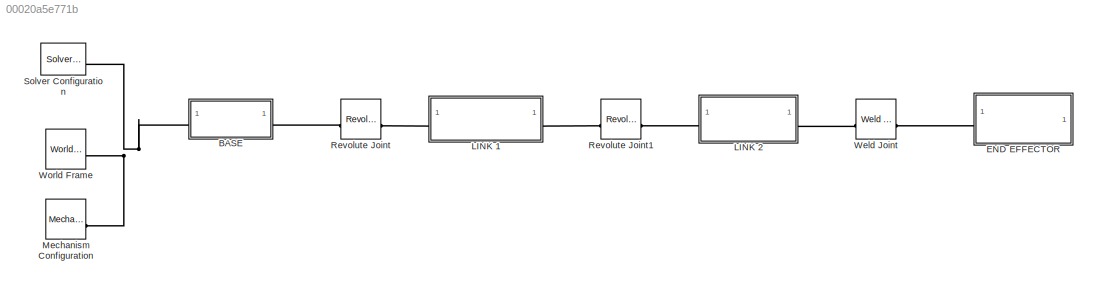
MODEL slx_00020a5e771b
KIND model
CONFIG AbsTol = auto
CONFIG EnableMultiTasking = off
CONFIG FixedStep = auto
CONFIG MaxStep = auto
CONFIG MinStep = auto
CONFIG RelTol = 1e-3
CONFIG SampleTimeConstraint = Unconstrained
CONFIG SolverName = VariableStepAuto
CONFIG StartTime = 0.0
CONFIG StopTime = 10.0
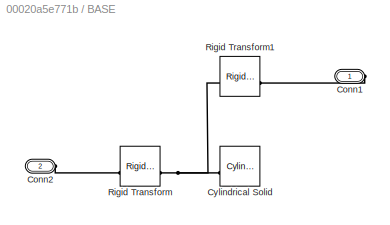
BLOCK [SubSystem] BASE
BLOCK [PMIOPort] BASE/Conn1
  Side = Right
BLOCK [PMIOPort] BASE/Conn2
  Port = 2
  Side = Left
BLOCK [Reference] BASE/Cylindrical Solid  REF=sm_lib/Body Elements/Cylindrical Solid
  SourceBlock = sm_lib/Body Elements/Cylindrical Solid
  SourceType = Cylindrical Solid
BLOCK [Reference] BASE/Rigid Transform  REF=sm_lib/Frames and
Transforms/Rigid
Transform
  SourceBlock = sm_lib/Frames and\nTransforms/Rigid\nTransform
  SourceType = Rigid\nTransform
BLOCK [Reference] BASE/Rigid Transform1  REF=sm_lib/Frames and
Transforms/Rigid
Transform
  SourceBlock = sm_lib/Frames and\nTransforms/Rigid\nTransform
  SourceType = Rigid\nTransform
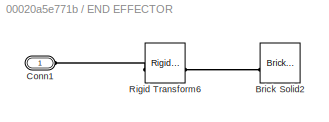
BLOCK [SubSystem] END EFFECTOR
BLOCK [Reference] END EFFECTOR/Brick Solid2  REF=sm_lib/Body Elements/Brick Solid
  SourceBlock = sm_lib/Body Elements/Brick Solid
  SourceType = Brick Solid
BLOCK [PMIOPort] END EFFECTOR/Conn1
  Side = Left
BLOCK [Reference] END EFFECTOR/Rigid Transform6  REF=sm_lib/Frames and
Transforms/Rigid
Transform
  SourceBlock = sm_lib/Frames and\nTransforms/Rigid\nTransform
  SourceType = Rigid\nTransform
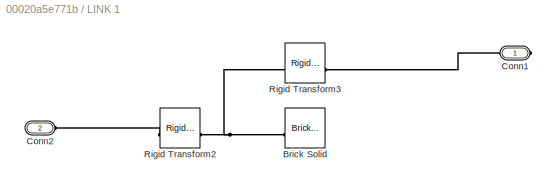
BLOCK [SubSystem] LINK 1
BLOCK [Reference] LINK 1/Brick Solid  REF=sm_lib/Body Elements/Brick Solid
  SourceBlock = sm_lib/Body Elements/Brick Solid
  SourceType = Brick Solid
BLOCK [PMIOPort] LINK 1/Conn1
  Side = Right
BLOCK [PMIOPort] LINK 1/Conn2
  Port = 2
  Side = Left
BLOCK [Reference] LINK 1/Rigid Transform2  REF=sm_lib/Frames and
Transforms/Rigid
Transform
  SourceBlock = sm_lib/Frames and\nTransforms/Rigid\nTransform
  SourceType = Rigid\nTransform
BLOCK [Reference] LINK 1/Rigid Transform3  REF=sm_lib/Frames and
Transforms/Rigid
Transform
  SourceBlock = sm_lib/Frames and\nTransforms/Rigid\nTransform
  SourceType = Rigid\nTransform
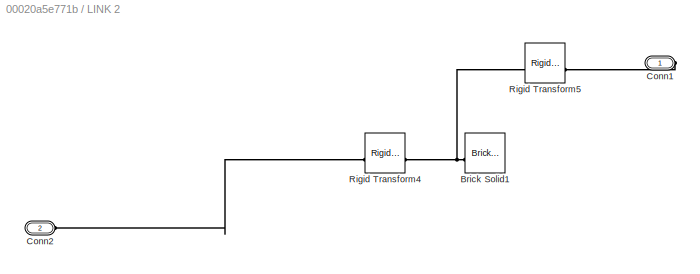
BLOCK [SubSystem] LINK 2
BLOCK [Reference] LINK 2/Brick Solid1  REF=sm_lib/Body Elements/Brick Solid
  SourceBlock = sm_lib/Body Elements/Brick Solid
  SourceType = Brick Solid
BLOCK [PMIOPort] LINK 2/Conn1
  Side = Right
BLOCK [PMIOPort] LINK 2/Conn2
  Port = 2
  Side = Left
BLOCK [Reference] LINK 2/Rigid Transform4  REF=sm_lib/Frames and
Transforms/Rigid
Transform
  SourceBlock = sm_lib/Frames and\nTransforms/Rigid\nTransform
  SourceType = Rigid\nTransform
BLOCK [Reference] LINK 2/Rigid Transform5  REF=sm_lib/Frames and
Transforms/Rigid
Transform
  SourceBlock = sm_lib/Frames and\nTransforms/Rigid\nTransform
  SourceType = Rigid\nTransform
BLOCK [Reference] Mechanism Configuration  REF=sm_lib/Utilities/Mechanism
Configuration
  SourceBlock = sm_lib/Utilities/Mechanism\nConfiguration
  SourceType = Mechanism\nConfiguration
BLOCK [Reference] Revolute Joint  REF=sm_lib/Joints/Revolute Joint
  SourceBlock = sm_lib/Joints/Revolute Joint
  SourceType = Revolute Joint
BLOCK [Reference] Revolute Joint1  REF=sm_lib/Joints/Revolute Joint
  SourceBlock = sm_lib/Joints/Revolute Joint
  SourceType = Revolute Joint
BLOCK [Reference] Solver Configuration  REF=nesl_utility/Solver
Configuration
  SourceBlock = nesl_utility/Solver\nConfiguration
  SourceType = Solver\nConfiguration
BLOCK [Reference] Weld Joint  REF=sm_lib/Joints/Weld Joint
  SourceBlock = sm_lib/Joints/Weld Joint
  SourceType = Weld Joint
BLOCK [Reference] World Frame  REF=sm_lib/Frames and
Transforms/World Frame
  SourceBlock = sm_lib/Frames and\nTransforms/World Frame
  SourceType = World Frame
PLINE BASE/Conn1:RConn1 -- BASE/Rigid Transform1:RConn1
PLINE BASE/Conn2:RConn1 -- BASE/Rigid Transform:LConn1
PNET net1: BASE/Cylindrical Solid:RConn1 -- BASE/Rigid Transform1:LConn1 -- BASE/Rigid Transform:RConn1
PNET net2: BASE:LConn1 -- Mechanism Configuration:RConn1 -- Solver Configuration:RConn1 -- World Frame:RConn1
PLINE BASE:RConn1 -- Revolute Joint:LConn1
PLINE END EFFECTOR/Brick Solid2:RConn1 -- END EFFECTOR/Rigid Transform6:RConn1
PLINE END EFFECTOR/Conn1:RConn1 -- END EFFECTOR/Rigid Transform6:LConn1
PLINE END EFFECTOR:LConn1 -- Weld Joint:RConn1
PNET net3: LINK 1/Brick Solid:RConn1 -- LINK 1/Rigid Transform2:RConn1 -- LINK 1/Rigid Transform3:LConn1
PLINE LINK 1/Conn1:RConn1 -- LINK 1/Rigid Transform3:RConn1
PLINE LINK 1/Conn2:RConn1 -- LINK 1/Rigid Transform2:LConn1
PLINE LINK 1:LConn1 -- Revolute Joint:RConn1
PLINE LINK 1:RConn1 -- Revolute Joint1:LConn1
PNET net4: LINK 2/Brick Solid1:RConn1 -- LINK 2/Rigid Transform4:RConn1 -- LINK 2/Rigid Transform5:LConn1
PLINE LINK 2/Conn1:RConn1 -- LINK 2/Rigid Transform5:RConn1
PLINE LINK 2/Conn2:RConn1 -- LINK 2/Rigid Transform4:LConn1
PLINE LINK 2:LConn1 -- Revolute Joint1:RConn1
PLINE LINK 2:RConn1 -- Weld Joint:LConn1
note: PNET lines group multi-terminal physical nets as a canonical sorted terminal list (undirected conserving connections); 2-terminal nets keep the pairwise PLINE form
